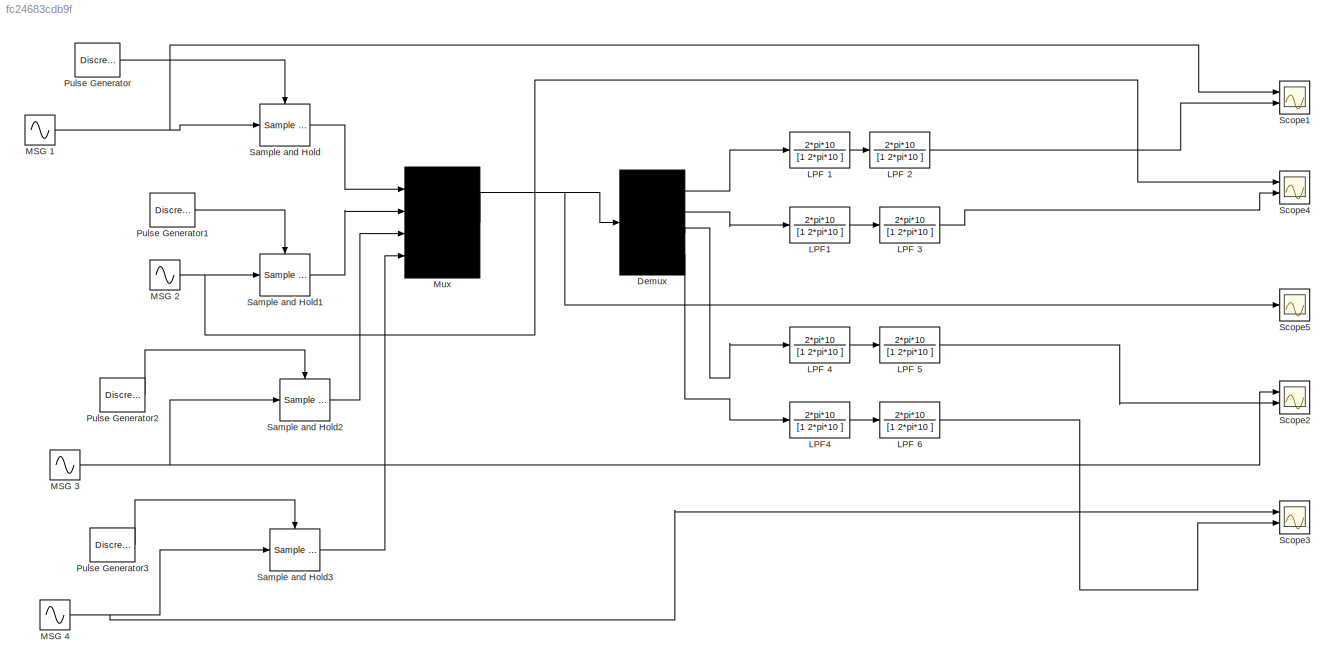
MODEL slx_fc24683cdb9f
KIND model
CONFIG AbsTol = auto
CONFIG EnableMultiTasking = on
CONFIG FixedStep = auto
CONFIG MaxStep = auto
CONFIG MinStep = auto
CONFIG RelTol = 1e-3
CONFIG SampleTimeConstraint = Unconstrained
CONFIG Solver = ode45
CONFIG SolverName = ode45
CONFIG StartTime = 0.0
CONFIG StopTime = 10.0
BLOCK [Demux] Demux
  Ports = [1, 4]
BLOCK [TransferFcn] LPF 1
  Denominator = [1 2*pi*10 ]
  Numerator = 2*pi*10
BLOCK [TransferFcn] LPF 2
  Denominator = [1 2*pi*10 ]
  Numerator = 2*pi*10
BLOCK [TransferFcn] LPF 3
  Denominator = [1 2*pi*10 ]
  Numerator = 2*pi*10
BLOCK [TransferFcn] LPF 4
  Denominator = [1 2*pi*10 ]
  Numerator = 2*pi*10
BLOCK [TransferFcn] LPF 5
  Denominator = [1 2*pi*10 ]
  Numerator = 2*pi*10
BLOCK [TransferFcn] LPF 6
  Denominator = [1 2*pi*10 ]
  Numerator = 2*pi*10
BLOCK [TransferFcn] LPF1
  Denominator = [1 2*pi*10 ]
  Numerator = 2*pi*10
BLOCK [TransferFcn] LPF4
  Denominator = [1 2*pi*10 ]
  Numerator = 2*pi*10
BLOCK [Sin] MSG 1
  Frequency = 2
  Ports = [0, 1]
  SampleTime = 0
BLOCK [Sin] MSG 2
  Frequency = 4
  Ports = [0, 1]
  SampleTime = 0
BLOCK [Sin] MSG 3
  Frequency = 6
  Ports = [0, 1]
  SampleTime = 0
BLOCK [Sin] MSG 4
  Frequency = 8
  Ports = [0, 1]
  SampleTime = 0
BLOCK [Mux] Mux
  Ports = [4, 1]
BLOCK [DiscretePulseGenerator] Pulse Generator
  Period = .01
  Ports = [0, 1]
  PulseType = Time based
  PulseWidth = 5
BLOCK [DiscretePulseGenerator] Pulse Generator1
  Period = .01
  Ports = [0, 1]
  PulseType = Time based
  PulseWidth = 5
BLOCK [DiscretePulseGenerator] Pulse Generator2
  Period = .01
  Ports = [0, 1]
  PulseType = Time based
  PulseWidth = 5
BLOCK [DiscretePulseGenerator] Pulse Generator3
  Period = .01
  Ports = [0, 1]
  PulseType = Time based
  PulseWidth = 5
BLOCK [Reference] Sample and Hold  REF=dspsigops/Sample
and Hold
  Ports = [1, 1, 0, 1]
  SourceBlock = dspsigops/Sample\nand Hold
  SourceProductBaseCode = DS
  SourceProductName = DSP System Toolbox
  SourceType = Sample and Hold
BLOCK [Reference] Sample and Hold1  REF=dspsigops/Sample
and Hold
  Ports = [1, 1, 0, 1]
  SourceBlock = dspsigops/Sample\nand Hold
  SourceProductBaseCode = DS
  SourceProductName = DSP System Toolbox
  SourceType = Sample and Hold
BLOCK [Reference] Sample and Hold2  REF=dspsigops/Sample
and Hold
  Ports = [1, 1, 0, 1]
  SourceBlock = dspsigops/Sample\nand Hold
  SourceProductBaseCode = DS
  SourceProductName = DSP System Toolbox
  SourceType = Sample and Hold
BLOCK [Reference] Sample and Hold3  REF=dspsigops/Sample
and Hold
  Ports = [1, 1, 0, 1]
  SourceBlock = dspsigops/Sample\nand Hold
  SourceProductBaseCode = DS
  SourceProductName = DSP System Toolbox
  SourceType = Sample and Hold
BLOCK [Scope] Scope1
  Floating = off
  NumInputPorts = 2
  Ports = [2]
  ScopeSpecificationString = Simulink.scopes.TimeScopeBlockCfg('CurrentConfiguration', extmgr.ConfigurationSet(extmgr.Configuration('Core','General UI',true),extmgr.Configuration('Core','Source UI',true),extmgr.Configuration('Sources','WiredSimulink',true,'DataLoggingVariableName','ScopeData1'),extmgr.Configuration('Visuals','Time Domain',true,'SerializedDisplays',{struct('MinYLimReal','-1.25','MaxYLimReal','1.25','YLabelReal...<+2004ch>
BLOCK [Scope] Scope2
  Floating = off
  NumInputPorts = 2
  Ports = [2]
  ScopeSpecificationString = Simulink.scopes.TimeScopeBlockCfg('CurrentConfiguration', extmgr.ConfigurationSet(extmgr.Configuration('Core','General UI',true),extmgr.Configuration('Core','Source UI',true),extmgr.Configuration('Sources','WiredSimulink',true,'DataLoggingVariableName','ScopeData2'),extmgr.Configuration('Visuals','Time Domain',true,'SerializedDisplays',{struct('MinYLimReal','-1.25','MaxYLimReal','1.25','YLabelReal...<+2001ch>
BLOCK [Scope] Scope3
  Floating = off
  NumInputPorts = 2
  Ports = [2]
  ScopeSpecificationString = Simulink.scopes.TimeScopeBlockCfg('CurrentConfiguration', extmgr.ConfigurationSet(extmgr.Configuration('Core','General UI',true),extmgr.Configuration('Core','Source UI',true),extmgr.Configuration('Sources','WiredSimulink',true,'DataLoggingVariableName','ScopeData3'),extmgr.Configuration('Visuals','Time Domain',true,'SerializedDisplays',{struct('MinYLimReal','-1.25','MaxYLimReal','1.25','YLabelReal...<+2001ch>
BLOCK [Scope] Scope4
  Floating = off
  NumInputPorts = 2
  Ports = [2]
  ScopeSpecificationString = Simulink.scopes.TimeScopeBlockCfg('CurrentConfiguration', extmgr.ConfigurationSet(extmgr.Configuration('Core','General UI',true),extmgr.Configuration('Core','Source UI',true),extmgr.Configuration('Sources','WiredSimulink',true,'DataLoggingVariableName','ScopeData4'),extmgr.Configuration('Visuals','Time Domain',true,'SerializedDisplays',{struct('MinYLimReal','-1.25','MaxYLimReal','1.25','YLabelReal...<+2001ch>
BLOCK [Scope] Scope5
  Floating = off
  NumInputPorts = 1
  Ports = [1]
  ScopeSpecificationString = Simulink.scopes.TimeScopeBlockCfg('CurrentConfiguration', extmgr.ConfigurationSet(extmgr.Configuration('Core','General UI',true),extmgr.Configuration('Core','Source UI',true),extmgr.Configuration('Sources','WiredSimulink',true,'DataLoggingVariableName','ScopeData5'),extmgr.Configuration('Visuals','Time Domain',true,'SerializedDisplays',{struct('MinYLimReal','-1.25','MaxYLimReal','1.25','YLabelReal...<+1444ch>
LINE Demux:1 -> LPF 1:1
LINE Demux:2 -> LPF1:1
LINE Demux:3 -> LPF 4:1
LINE Demux:4 -> LPF4:1
LINE LPF 1:1 -> LPF 2:1
LINE LPF 2:1 -> Scope1:2
LINE LPF 3:1 -> Scope4:2
LINE LPF 4:1 -> LPF 5:1
LINE LPF 5:1 -> Scope2:2
LINE LPF 6:1 -> Scope3:2
LINE LPF1:1 -> LPF 3:1
LINE LPF4:1 -> LPF 6:1
NET MSG 1:1 -> Sample and Hold:1, Scope1:1
NET MSG 2:1 -> Sample and Hold1:1, Scope4:1
NET MSG 3:1 -> Sample and Hold2:1, Scope2:1
NET MSG 4:1 -> Sample and Hold3:1, Scope3:1
NET Mux:1 -> Demux:1, Scope5:1
LINE Pulse Generator1:1 -> Sample and Hold1:trigger
LINE Pulse Generator2:1 -> Sample and Hold2:trigger
LINE Pulse Generator3:1 -> Sample and Hold3:trigger
LINE Pulse Generator:1 -> Sample and Hold:trigger
LINE Sample and Hold1:1 -> Mux:2
LINE Sample and Hold2:1 -> Mux:3
LINE Sample and Hold3:1 -> Mux:4
LINE Sample and Hold:1 -> Mux:1
note: NET lines group one-source signal fan-out (src -> all destinations, sorted); 1:1 wires keep LINE
